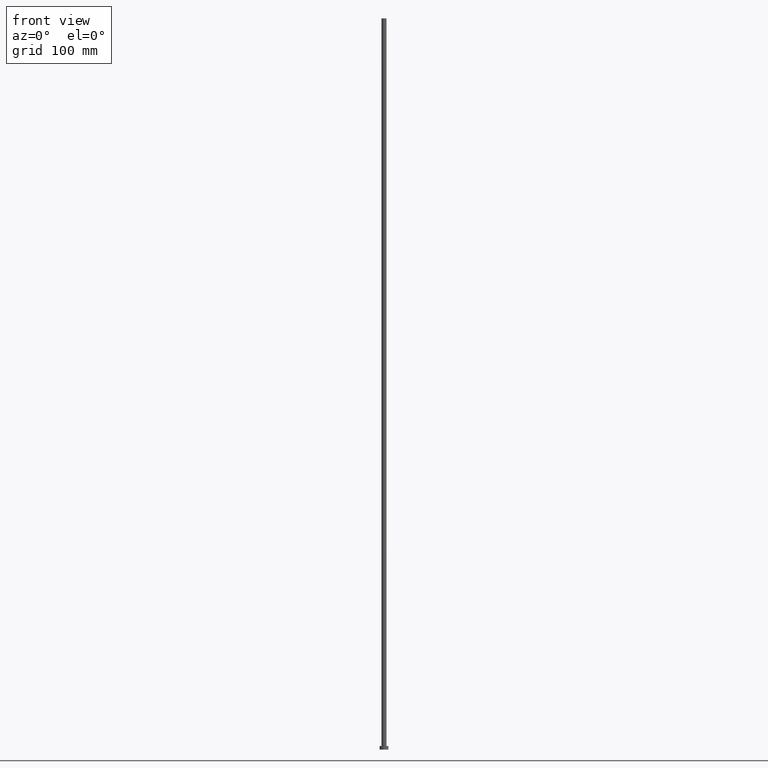
[diagram: clean part render]
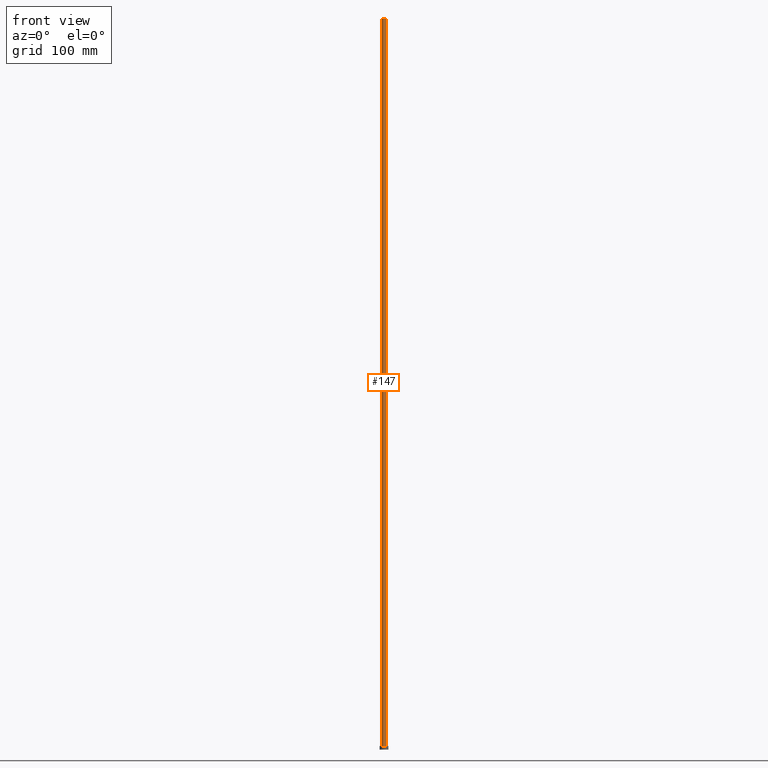
[diagram: same view with one face highlighted and labeled with its STEP entity id]
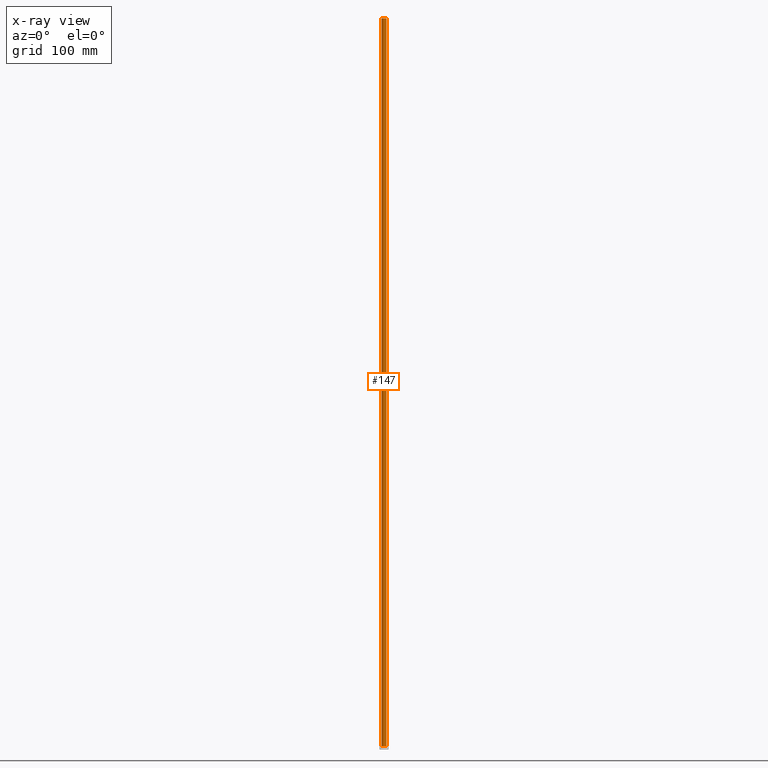
[diagram: x-ray of the same camera — body ghosted, the highlighted face saturated]
A machine part, front view. The second image highlights one B-rep face of the part: STEP entity #147.
The next image is the same camera in x-ray: the body ghosted, the highlighted face saturated — about 0% of this face is hidden behind the body in this view.
In plain terms, the highlighted cylindrical surface (edge-blend (fillet) strip) has radius 3.5 mm, axis along (-0, -0, -1).
Its self-contained STEP definition (entity closure, byte-faithful):
#7 = AXIS2_PLACEMENT_3D ( 'NONE', #9, #141, #186 ) ;
#9 = CARTESIAN_POINT ( 'NONE',  ( 0.000000000000000000, 0.000000000000000000, 1000.000000000000000 ) ) ;
#10 = AXIS2_PLACEMENT_3D ( 'NONE', #151, #128, #70 ) ;
#28 = VERTEX_POINT ( 'NONE', #50 ) ;
#30 = CARTESIAN_POINT ( 'NONE',  ( -3.500000000000000000, 0.000000000000000000, 5.000000000000000000 ) ) ;
#33 = DIRECTION ( 'NONE',  ( -0.000000000000000000, -0.000000000000000000, -1.000000000000000000 ) ) ;
#37 = CIRCLE ( 'NONE', #249, 3.500000000000000000 ) ;
#40 = VERTEX_POINT ( 'NONE', #175 ) ;
#50 = CARTESIAN_POINT ( 'NONE',  ( 3.500000000000000000, 4.286263797015735609E-16, 5.000000000000000000 ) ) ;
#55 = CARTESIAN_POINT ( 'NONE',  ( 3.500000000000000000, 4.286263797015735609E-16, 1000.000000000000000 ) ) ;
#58 = CYLINDRICAL_SURFACE ( 'NONE', #7, 3.500000000000000000 ) ;
#62 = CARTESIAN_POINT ( 'NONE',  ( 0.000000000000000000, 0.000000000000000000, 1000.000000000000000 ) ) ;
#70 = DIRECTION ( 'NONE',  ( 1.000000000000000000, 0.000000000000000000, 0.000000000000000000 ) ) ;
#87 = CARTESIAN_POINT ( 'NONE',  ( -3.500000000000000000, 0.000000000000000000, 1000.000000000000000 ) ) ;
#93 = LINE ( 'NONE', #55, #207 ) ;
#104 = EDGE_CURVE ( 'NONE', #202, #28, #127, .T. ) ;
#110 = ORIENTED_EDGE ( 'NONE', *, *, #169, .F. ) ;
#120 = ORIENTED_EDGE ( 'NONE', *, *, #248, .F. ) ;
#127 = CIRCLE ( 'NONE', #10, 3.500000000000000000 ) ;
#128 = DIRECTION ( 'NONE',  ( 0.000000000000000000, 0.000000000000000000, 1.000000000000000000 ) ) ;
#132 = DIRECTION ( 'NONE',  ( -0.000000000000000000, -0.000000000000000000, -1.000000000000000000 ) ) ;
#141 = DIRECTION ( 'NONE',  ( -0.000000000000000000, -0.000000000000000000, -1.000000000000000000 ) ) ;
#143 = EDGE_LOOP ( 'NONE', ( #120, #110, #245, #240 ) ) ;
#147 = ADVANCED_FACE ( 'NONE', ( #242 ), #58, .T. ) ;
#148 = VECTOR ( 'NONE', #33, 1000.000000000000000 ) ;
#151 = CARTESIAN_POINT ( 'NONE',  ( 0.000000000000000000, 0.000000000000000000, 5.000000000000000000 ) ) ;
#169 = EDGE_CURVE ( 'NONE', #241, #40, #37, .T. ) ;
#175 = CARTESIAN_POINT ( 'NONE',  ( 3.500000000000000000, 4.286263797015735609E-16, 1000.000000000000000 ) ) ;
#184 = DIRECTION ( 'NONE',  ( 0.000000000000000000, 0.000000000000000000, 1.000000000000000000 ) ) ;
#186 = DIRECTION ( 'NONE',  ( -1.000000000000000000, 0.000000000000000000, 0.000000000000000000 ) ) ;
#193 = EDGE_CURVE ( 'NONE', #241, #202, #203, .T. ) ;
#202 = VERTEX_POINT ( 'NONE', #30 ) ;
#203 = LINE ( 'NONE', #87, #148 ) ;
#207 = VECTOR ( 'NONE', #132, 1000.000000000000000 ) ;
#236 = CARTESIAN_POINT ( 'NONE',  ( -3.500000000000000000, 0.000000000000000000, 1000.000000000000000 ) ) ;
#240 = ORIENTED_EDGE ( 'NONE', *, *, #104, .T. ) ;
#241 = VERTEX_POINT ( 'NONE', #236 ) ;
#242 = FACE_OUTER_BOUND ( 'NONE', #143, .T. ) ;
#245 = ORIENTED_EDGE ( 'NONE', *, *, #193, .T. ) ;
#248 = EDGE_CURVE ( 'NONE', #40, #28, #93, .T. ) ;
#249 = AXIS2_PLACEMENT_3D ( 'NONE', #62, #184, #251 ) ;
#251 = DIRECTION ( 'NONE',  ( 1.000000000000000000, 0.000000000000000000, 0.000000000000000000 ) ) ;